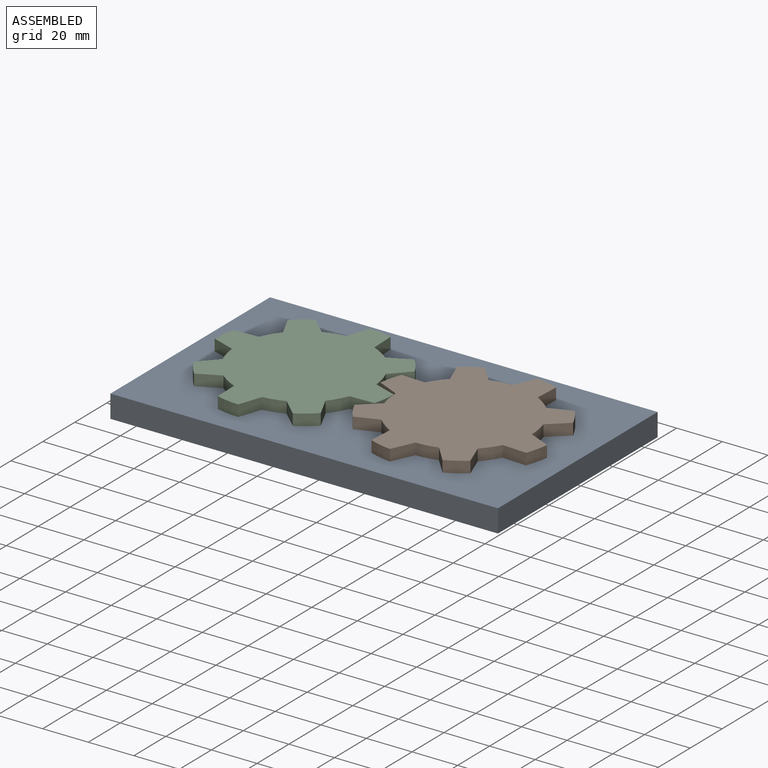
[diagram: assembled view]
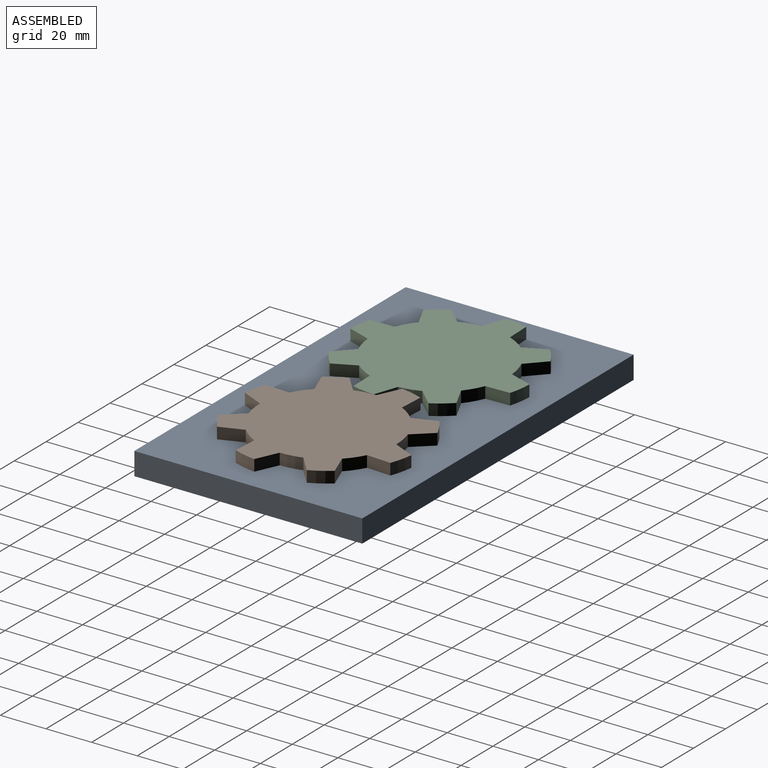
[diagram: assembled view, second angle]
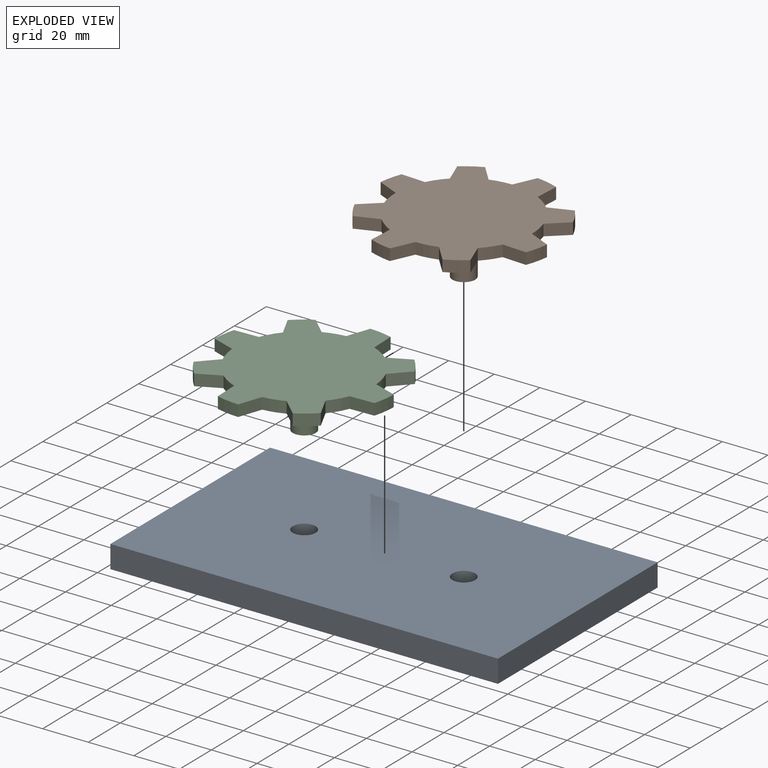
[diagram: exploded view]
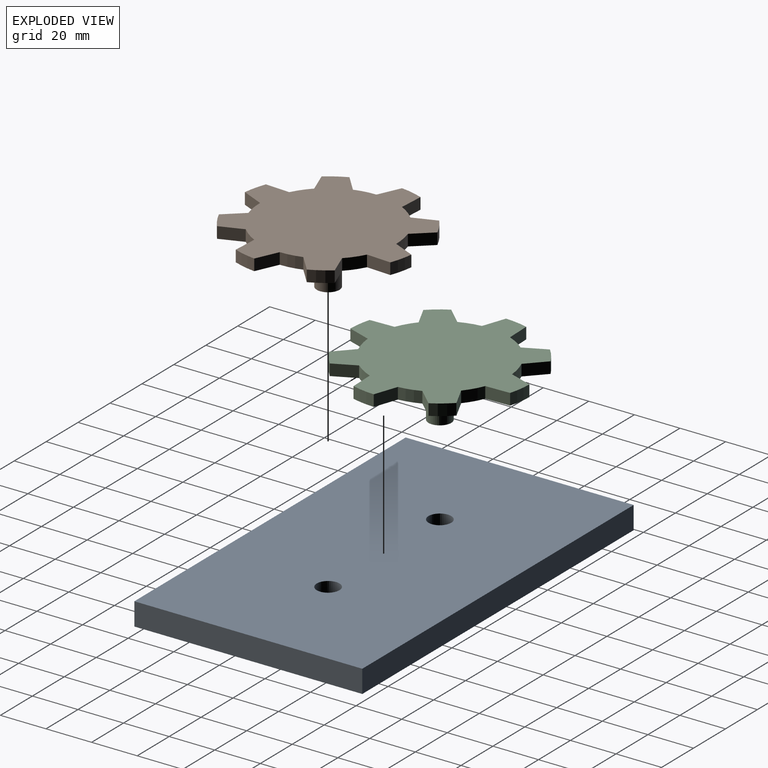
[diagram: exploded view, second angle]
ASSEMBLY  parts=3 mates=2
PART A: 8 faces, bbox 170x100x10 mm
  f0: plane 170x10mm, normal (0,-1,0), area 1700mm2, adj f1,f3,f4,f5
  f1: plane 100x10mm, normal (1,0,0), area 1000mm2, adj f0,f2,f4,f5
  f2: plane 170x10mm, normal (0,1,0), area 1700mm2, adj f1,f3,f4,f5
  f3: plane 100x10mm, normal (-1,0,0), area 1000mm2, adj f0,f2,f4,f5
  f4: plane 170x100mm, normal (0,0,-1), area 16842.9mm2, adj f0,f1,f2,f3,f6,f7
  f5: plane 170x100mm, normal (0,0,1), area 16842.9mm2, adj f0,f1,f2,f3,f6,f7
  f6: cylinder r=5mm len=10mm, axis (0,0,1), area 314.2mm2, adj f4,f5
  f7: cylinder r=5mm len=10mm, axis (0,0,1), area 314.2mm2, adj f4,f5
PART B: 36 faces, bbox 77.2x77.2x25 mm
  f0: plane 8.96x5.82mm, normal (0.54,0.84,0), area 53.4mm2, adj f1,f31,f32,f33
  f1: cylinder r=30mm len=9.44mm, axis (0,0,-1), area 47.4mm2, adj f0,f2,f32,f33
  f2: plane 8.96x5.82mm, normal (0.54,-0.84,0), area 53.4mm2, adj f1,f3,f32,f33
  f3: cylinder r=40mm len=9.28mm, axis (0,0,-1), area 50.4mm2, adj f2,f4,f32,f33
  f4: plane 10.45x5mm, normal (-0.21,0.98,0), area 53.4mm2, adj f3,f5,f32,f33
  f5: cylinder r=30mm len=6.68mm, axis (0,0,-1), area 47.4mm2, adj f4,f6,f32,f33
  f6: plane 10.45x5mm, normal (0.98,-0.21,0), area 53.4mm2, adj f5,f7,f32,f33
  f7: cylinder r=40mm len=9.28mm, axis (0,0,-1), area 50.4mm2, adj f6,f8,f32,f33
  f8: plane 8.96x5.82mm, normal (-0.84,0.54,0), area 53.4mm2, adj f7,f9,f32,f33
  f9: cylinder r=30mm len=9.44mm, axis (0,0,-1), area 47.4mm2, adj f8,f10,f32,f33
  f10: plane 8.96x5.82mm, normal (0.84,0.54,0), area 53.4mm2, adj f9,f11,f32,f33
  f11: cylinder r=40mm len=9.28mm, axis (0,0,-1), area 50.4mm2, adj f10,f12,f32,f33
  f12: plane 10.45x5mm, normal (-0.98,-0.21,0), area 53.4mm2, adj f11,f13,f32,f33
  f13: cylinder r=30mm len=6.68mm, axis (0,0,-1), area 47.4mm2, adj f12,f14,f32,f33
  f14: plane 10.45x5mm, normal (0.21,0.98,0), area 53.4mm2, adj f13,f15,f32,f33
  f15: cylinder r=40mm len=9.28mm, axis (0,0,-1), area 50.4mm2, adj f14,f16,f32,f33
  f16: plane 8.96x5.82mm, normal (-0.54,-0.84,0), area 53.4mm2, adj f15,f17,f32,f33
  f17: cylinder r=30mm len=9.44mm, axis (0,0,-1), area 47.4mm2, adj f16,f18,f32,f33
  f18: plane 8.96x5.82mm, normal (-0.54,0.84,0), area 53.4mm2, adj f17,f19,f32,f33
  f19: cylinder r=40mm len=9.28mm, axis (0,0,-1), area 50.4mm2, adj f18,f20,f32,f33
  f20: plane 10.45x5mm, normal (0.21,-0.98,0), area 53.4mm2, adj f19,f21,f32,f33
  f21: cylinder r=30mm len=6.68mm, axis (0,0,-1), area 47.4mm2, adj f20,f22,f32,f33
  f22: plane 10.45x5mm, normal (-0.98,0.21,0), area 53.4mm2, adj f21,f23,f32,f33
  f23: cylinder r=40mm len=9.28mm, axis (0,0,-1), area 50.4mm2, adj f22,f24,f32,f33
  f24: plane 8.96x5.82mm, normal (0.84,-0.54,0), area 53.4mm2, adj f23,f25,f32,f33
  f25: cylinder r=30mm len=9.44mm, axis (0,0,-1), area 47.4mm2, adj f24,f26,f32,f33
  f26: plane 8.96x5.82mm, normal (-0.84,-0.54,0), area 53.4mm2, adj f25,f27,f32,f33
  f27: cylinder r=40mm len=9.28mm, axis (0,0,-1), area 50.4mm2, adj f26,f28,f32,f33
  f28: plane 10.45x5mm, normal (0.98,0.21,0), area 53.4mm2, adj f27,f29,f32,f33
  f29: cylinder r=30mm len=6.68mm, axis (0,0,-1), area 47.4mm2, adj f28,f30,f32,f33
  f30: plane 10.45x5mm, normal (-0.21,-0.98,0), area 53.4mm2, adj f29,f31,f32,f33
  f31: cylinder r=40mm len=9.28mm, axis (0,0,-1), area 50.4mm2, adj f0,f30,f32,f33
  f32: plane 77.17x77.17mm, normal (0,0,1), area 3791.5mm2, adj f0,f1,f2,f3,f4,f5,f6,f7
  f33: plane 77.17x77.17mm, normal (0,0,-1), area 3713mm2, adj f0,f1,f2,f3,f4,f5,f6,f7
  f34: cylinder r=5mm len=20mm, axis (0,0,1), area 628.3mm2, adj f33,f35
  f35: plane 10x10mm, normal (0,0,-1), area 78.5mm2, adj f34
PART C: 36 faces, bbox 80x80x25 mm
  f0: plane 8.81x6.05mm, normal (0.82,0.57,0), area 53.4mm2, adj f1,f31,f32,f33
  f1: cylinder r=30mm len=8.72mm, axis (0,0,-1), area 47.4mm2, adj f0,f2,f32,f33
  f2: plane 10.51x5mm, normal (0.18,-0.98,0), area 53.4mm2, adj f1,f3,f32,f33
  f3: cylinder r=40mm len=10.05mm, axis (0,0,-1), area 50.4mm2, adj f2,f4,f32,f33
  f4: plane 10.51x5mm, normal (0.18,0.98,0), area 53.4mm2, adj f3,f5,f32,f33
  f5: cylinder r=30mm len=8.72mm, axis (0,0,-1), area 47.4mm2, adj f4,f6,f32,f33
  f6: plane 8.81x6.05mm, normal (0.82,-0.57,0), area 53.4mm2, adj f5,f7,f32,f33
  f7: cylinder r=40mm len=7.1mm, axis (0,0,-1), area 50.4mm2, adj f6,f8,f32,f33
  f8: plane 8.81x6.05mm, normal (-0.57,0.82,0), area 53.4mm2, adj f7,f9,f32,f33
  f9: cylinder r=30mm len=8.72mm, axis (0,0,-1), area 47.4mm2, adj f8,f10,f32,f33
  f10: plane 10.51x5mm, normal (0.98,0.18,0), area 53.4mm2, adj f9,f11,f32,f33
  f11: cylinder r=40mm len=10.05mm, axis (0,0,-1), area 50.4mm2, adj f10,f12,f32,f33
  f12: plane 10.51x5mm, normal (-0.98,0.18,0), area 53.4mm2, adj f11,f13,f32,f33
  f13: cylinder r=30mm len=8.72mm, axis (0,0,-1), area 47.4mm2, adj f12,f14,f32,f33
  f14: plane 8.81x6.05mm, normal (0.57,0.82,0), area 53.4mm2, adj f13,f15,f32,f33
  f15: cylinder r=40mm len=7.1mm, axis (0,0,-1), area 50.4mm2, adj f14,f16,f32,f33
  f16: plane 8.81x6.05mm, normal (-0.82,-0.57,0), area 53.4mm2, adj f15,f17,f32,f33
  f17: cylinder r=30mm len=8.72mm, axis (0,0,-1), area 47.4mm2, adj f16,f18,f32,f33
  f18: plane 10.51x5mm, normal (-0.18,0.98,0), area 53.4mm2, adj f17,f19,f32,f33
  f19: cylinder r=40mm len=10.05mm, axis (0,0,-1), area 50.4mm2, adj f18,f20,f32,f33
  f20: plane 10.51x5mm, normal (-0.18,-0.98,0), area 53.4mm2, adj f19,f21,f32,f33
  f21: cylinder r=30mm len=8.72mm, axis (0,0,-1), area 47.4mm2, adj f20,f22,f32,f33
  f22: plane 8.81x6.05mm, normal (-0.82,0.57,0), area 53.4mm2, adj f21,f23,f32,f33
  f23: cylinder r=40mm len=7.1mm, axis (0,0,-1), area 50.4mm2, adj f22,f24,f32,f33
  f24: plane 8.81x6.05mm, normal (0.57,-0.82,0), area 53.4mm2, adj f23,f25,f32,f33
  f25: cylinder r=30mm len=8.72mm, axis (0,0,-1), area 47.4mm2, adj f24,f26,f32,f33
  f26: plane 10.51x5mm, normal (-0.98,-0.18,0), area 53.4mm2, adj f25,f27,f32,f33
  f27: cylinder r=40mm len=10.05mm, axis (0,0,-1), area 50.4mm2, adj f26,f28,f32,f33
  f28: plane 10.51x5mm, normal (0.98,-0.18,0), area 53.4mm2, adj f27,f29,f32,f33
  f29: cylinder r=30mm len=8.72mm, axis (0,0,-1), area 47.4mm2, adj f28,f30,f32,f33
  f30: plane 8.81x6.05mm, normal (-0.57,-0.82,0), area 53.4mm2, adj f29,f31,f32,f33
  f31: cylinder r=40mm len=7.1mm, axis (0,0,-1), area 50.4mm2, adj f0,f30,f32,f33
  f32: plane 80x80mm, normal (0,0,1), area 3791.5mm2, adj f0,f1,f2,f3,f4,f5,f6,f7
  f33: plane 80x80mm, normal (0,0,-1), area 3713mm2, adj f0,f1,f2,f3,f4,f5,f6,f7
  f34: cylinder r=5mm len=20mm, axis (0,0,1), area 628.3mm2, adj f33,f35
  f35: plane 10x10mm, normal (0,0,-1), area 78.5mm2, adj f34
PLACE A t=(-84.18,29.81,8.46)mm fixed
PLACE B rot(axis=(0,0,-1),126.3deg) t=(27.29,86.2,8.46)mm
PLACE C rot(axis=(0,0,1),126.3deg) t=(-84.18,29.81,8.46)mm
MATE revolute A.f7 <-> B.f34  axis (0,0,1) through (-14.18,29.81,8.46)mm
MATE revolute A.f6 <-> C.f34  axis (0,0,1) through (-84.18,29.81,8.46)mm
